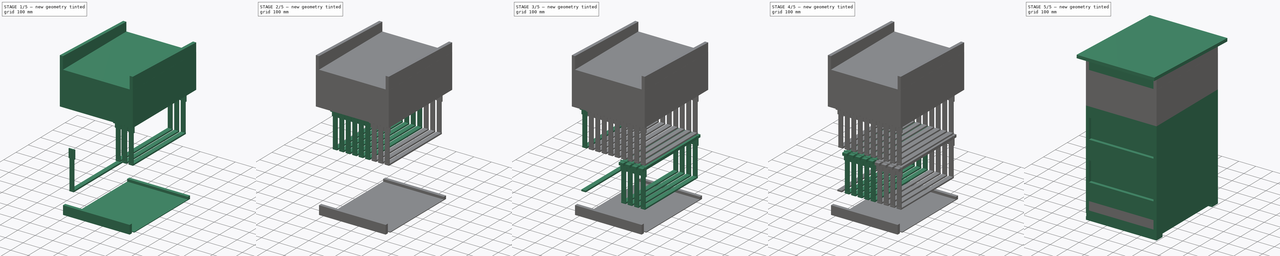
[diagram: build sequence overview — one tinted view per stage of 5, left to right]
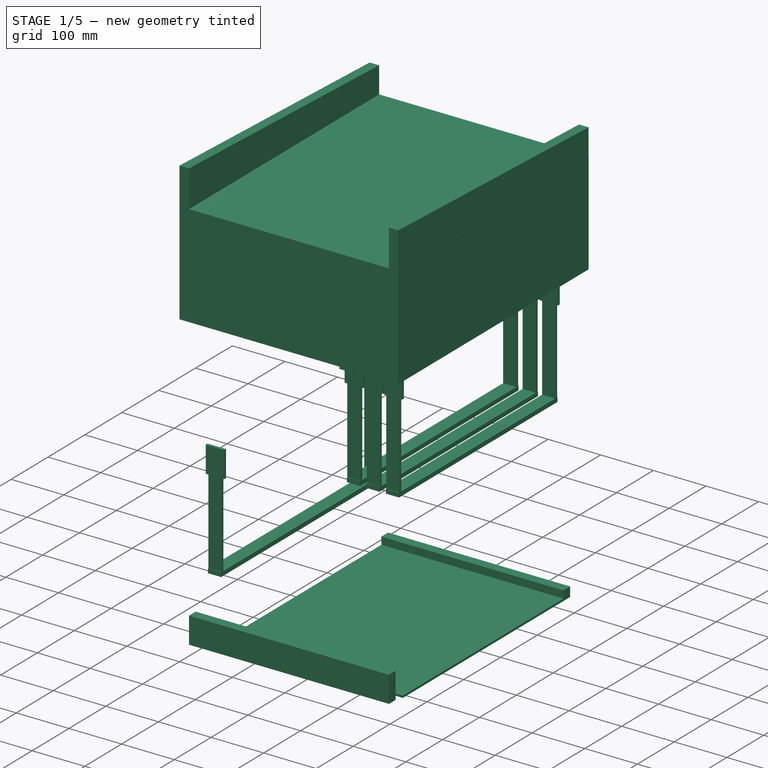
[diagram: stage 1 of 5 — iso view after this stage's code; geometry added in this stage tinted green]
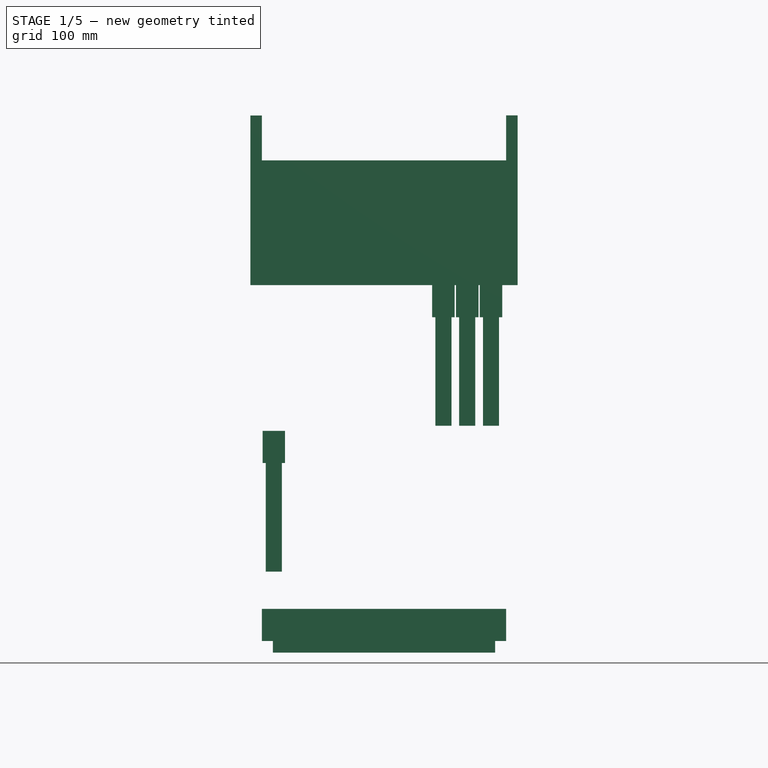
[diagram: stage 1 of 5 — front view after this stage's code; geometry added in this stage tinted green]
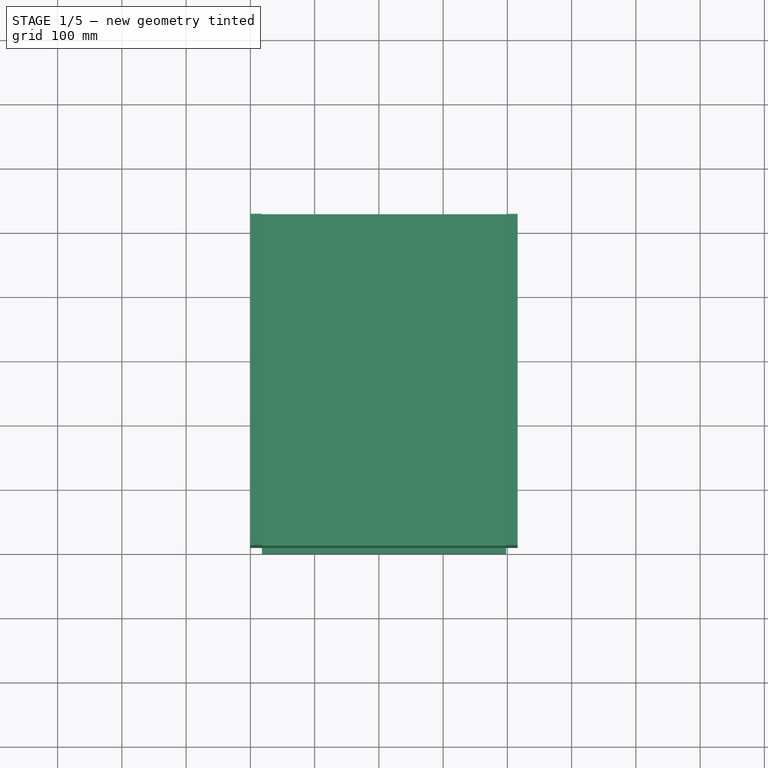
[diagram: stage 1 of 5 — top view after this stage's code; geometry added in this stage tinted green]
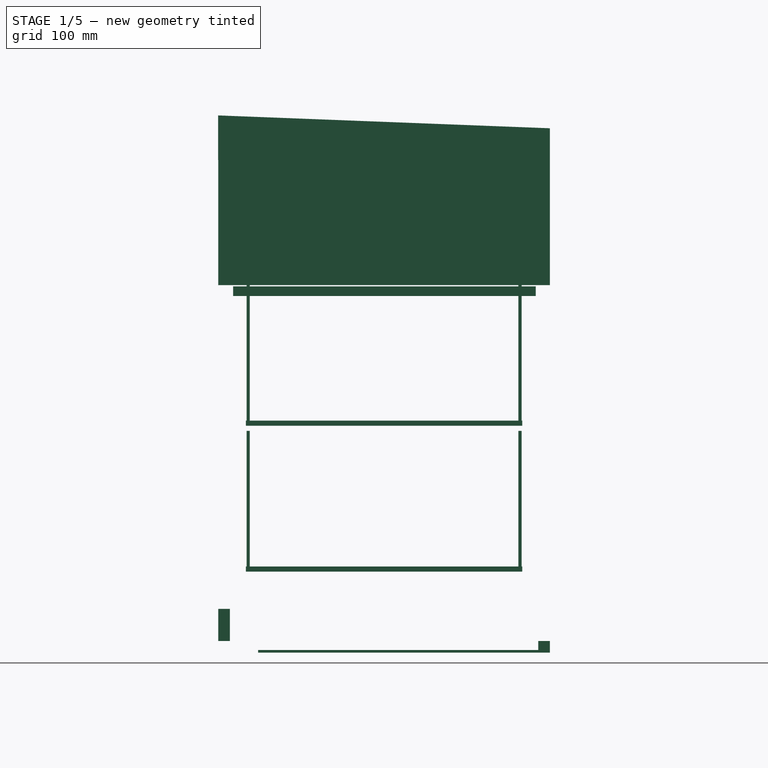
[diagram: stage 1 of 5 — right view after this stage's code; geometry added in this stage tinted green]
FCSTD DOCUMENT  (FreeCAD 0.16R)
Label: Hohenheimer Einfachbeute Bauhaus
License: All rights reserved
LicenseURL: http://en.wikipedia.org/wiki/All_rights_reserved
objects: Part::Box×167, Part::MultiFuse×61, App::DocumentObjectGroup×7, Sketcher::SketchObject×2, PartDesign::Pad×2, Part::Cut×1, Part::Fuse×1
note: 236 computed .brp shape members not serialized (recipe doc carries the construction recipe); baked Part::Feature solids carry a one-line shape summary decoded from their .brp

FEATURE [Part::Box] Box022  label="Boden Varroalade Verschluss (2.2)"
  Height = 14
  Length = 346
  Placement = pos=(35,498,40) rot=(0,0,1;0rad)
  Width = 18
FEATURE [Part::Box] Box149  label="Magazin Seitenwand (1)072"
  Height = 50
  Length = 35
  Placement = pos=(19,467,331) rot=(0,0,1;0rad)
  Width = 5
FEATURE [Part::Box] Box150  label="Magazin Seitenwand (1)073"
  Height = 219
  Length = 25
  Placement = pos=(24,467,162) rot=(0,0,1;0rad)
  Width = 5
FEATURE [Part::MultiFuse] Fusion052  label="Seitenbrett034"
  Shapes = -> [Box149,Box150]
FEATURE [Part::Box] Box151  label="Magazin Seitenwand (1)074"
  Height = 50
  Length = 35
  Placement = pos=(19,467,331) rot=(0,0,1;0rad)
  Width = 5
FEATURE [Part::Box] Box152  label="Magazin Seitenwand (1)075"
  Height = 219
  Length = 25
  Placement = pos=(24,467,162) rot=(0,0,1;0rad)
  Width = 5
FEATURE [Part::MultiFuse] Fusion053  label="Seitenbrett035"
  Placement = pos=(0,-423,0) rot=(0,0,1;0rad)
  Shapes = -> [Box151,Box152]
FEATURE [Part::Box] Box153  label="Rähmchen untere Leiste017"
  Height = 8
  Length = 25
  Placement = pos=(24,43,162) rot=(0,0,1;0rad)
  Width = 430
FEATURE [Part::Box] Box154  label="Rähmchen obere Leiste018"
  Height = 15
  Length = 25
  Placement = pos=(24,23,364) rot=(0,0,1;0rad)
  Width = 471
FEATURE [Part::Box] Box155  label="Magazin Seitenwand (1)076"
  Height = 50
  Length = 35
  Placement = pos=(19,467,331) rot=(0,0,1;0rad)
  Width = 5
FEATURE [Part::Box] Box156  label="Magazin Seitenwand (1)077"
  Height = 219
  Length = 25
  Placement = pos=(24,467,162) rot=(0,0,1;0rad)
  Width = 5
FEATURE [Part::MultiFuse] Fusion055  label="Seitenbrett036"
  Shapes = -> [Box155,Box156]
FEATURE [Part::Box] Box157  label="Magazin Seitenwand (1)078"
  Height = 50
  Length = 35
  Placement = pos=(19,467,331) rot=(0,0,1;0rad)
  Width = 5
FEATURE [Part::Box] Box158  label="Magazin Seitenwand (1)079"
  Height = 219
  Length = 25
  Placement = pos=(24,467,162) rot=(0,0,1;0rad)
  Width = 5
FEATURE [Part::MultiFuse] Fusion056  label="Seitenbrett037"
  Placement = pos=(0,-423,0) rot=(0,0,1;0rad)
  Shapes = -> [Box157,Box158]
FEATURE [Part::Box] Box159  label="Rähmchen untere Leiste018"
  Height = 8
  Length = 25
  Placement = pos=(24,43,162) rot=(0,0,1;0rad)
  Width = 430
FEATURE [Part::MultiFuse] Fusion057  label="Rähmchen020"
  Placement = pos=(264,0,227) rot=(0,0,1;0rad)
  Shapes = -> [Box154,Fusion055,Fusion056,Box159]
FEATURE [Part::Box] Box160  label="Rähmchen obere Leiste019"
  Height = 15
  Length = 25
  Placement = pos=(24,23,364) rot=(0,0,1;0rad)
  Width = 471
FEATURE [Part::Box] Box161  label="Magazin Seitenwand (1)080"
  Height = 50
  Length = 35
  Placement = pos=(19,467,331) rot=(0,0,1;0rad)
  Width = 5
FEATURE [Part::Box] Box162  label="Magazin Seitenwand (1)081"
  Height = 219
  Length = 25
  Placement = pos=(24,467,162) rot=(0,0,1;0rad)
  Width = 5
FEATURE [Part::MultiFuse] Fusion058  label="Seitenbrett038"
  Shapes = -> [Box161,Box162]
FEATURE [Part::Box] Box163  label="Magazin Seitenwand (1)082"
  Height = 50
  Length = 35
  Placement = pos=(19,467,331) rot=(0,0,1;0rad)
  Width = 5
FEATURE [Part::Box] Box164  label="Magazin Seitenwand (1)083"
  Height = 219
  Length = 25
  Placement = pos=(24,467,162) rot=(0,0,1;0rad)
  Width = 5
FEATURE [Part::MultiFuse] Fusion059  label="Seitenbrett039"
  Placement = pos=(0,-423,0) rot=(0,0,1;0rad)
  Shapes = -> [Box163,Box164]
FEATURE [Part::Box] Box165  label="Rähmchen untere Leiste019"
  Height = 8
  Length = 25
  Placement = pos=(24,43,162) rot=(0,0,1;0rad)
  Width = 430
FEATURE [Part::MultiFuse] Fusion060  label="Rähmchen021"
  Placement = pos=(301,0,227) rot=(0,0,1;0rad)
  Shapes = -> [Box160,Fusion058,Fusion059,Box165]
FEATURE [Part::Box] Box166  label="Rähmchen obere Leiste020"
  Height = 15
  Length = 25
  Placement = pos=(24,23,364) rot=(0,0,1;0rad)
  Width = 471
FEATURE [Part::Box] Box167  label="Magazin Seitenwand (1)084"
  Height = 50
  Length = 35
  Placement = pos=(19,467,331) rot=(0,0,1;0rad)
  Width = 5
FEATURE [Part::Box] Box168  label="Magazin Seitenwand (1)085"
  Height = 219
  Length = 25
  Placement = pos=(24,467,162) rot=(0,0,1;0rad)
  Width = 5
FEATURE [Part::MultiFuse] Fusion061  label="Seitenbrett040"
  Shapes = -> [Box167,Box168]
FEATURE [Part::Box] Box169  label="Magazin Seitenwand (1)086"
  Height = 50
  Length = 35
  Placement = pos=(19,467,331) rot=(0,0,1;0rad)
  Width = 5
FEATURE [Part::Box] Box170  label="Magazin Seitenwand (1)087"
  Height = 219
  Length = 25
  Placement = pos=(24,467,162) rot=(0,0,1;0rad)
  Width = 5
FEATURE [Part::MultiFuse] Fusion062  label="Seitenbrett041"
  Placement = pos=(0,-423,0) rot=(0,0,1;0rad)
  Shapes = -> [Box169,Box170]
FEATURE [Part::Box] Box171  label="Rähmchen untere Leiste020"
  Height = 8
  Length = 25
  Placement = pos=(24,43,162) rot=(0,0,1;0rad)
  Width = 430
FEATURE [Part::MultiFuse] Fusion063  label="Rähmchen022"
  Placement = pos=(338,0,227) rot=(0,0,1;0rad)
  Shapes = -> [Box166,Fusion061,Fusion062,Box171]
FEATURE [App::DocumentObjectGroup] Gruppe005  label="Rähmchen012"
  Group = -> [Fusion036,Fusion039,Fusion042,Fusion045,Fusion048,Fusion051,Fusion054,Fusion057,Fusion060,Fusion063]
FEATURE [App::DocumentObjectGroup] Gruppe002  label="Zarge002"
  Group = -> [Box033,Box034,Box038,Box035,Box036,Box037,Box039,Box040,Gruppe005]
FEATURE [Part::Box] Box044  label="Deckel Stirnseite (2.1)001"
  Height = 18
  Length = 416
  Placement = pos=(0,0,784) rot=(0,0,1;0rad)
  Width = 516
FEATURE [Part::Box] Box172  label="Boden Varroalade Schaufläche"
  Height = 4
  Length = 346
  Placement = pos=(35,62,36) rot=(0,0,1;0rad)
  Width = 454
FEATURE [Part::Fuse] Fusion064  label="Varroaschublade"
  Base = -> Box172
  Tool = -> Box022
FEATURE [Sketcher::SketchObject] Sketch002
  Placement = pos=(0,0,176) rot=(0.57735,0.57735,0.57735;2.0944rad)
  sketch-geometry (4):
    g0: LineSegment StartX=4.28085e-05 StartY=625.984 StartZ=0 EndX=4.28085e-05 EndY=695.984 EndZ=0
    g1: LineSegment StartX=4.28085e-05 StartY=695.984 StartZ=0 EndX=516 EndY=675.984 EndZ=0
    g2: LineSegment StartX=516 StartY=675.984 StartZ=0 EndX=516 EndY=625.984 EndZ=0
    g3: LineSegment StartX=516 StartY=625.984 StartZ=0 EndX=4.28085e-05 EndY=625.984 EndZ=0
  constraints (10):
    c: Coincident(g0,g1)
    c: Coincident(g1,g2)
    c: Coincident(g2,g3)
    c: Coincident(g3,g0)
    c: Parallel(g2,g0)
    c: Parallel(g0,g-2)
    c: Perpendicular(g2,g3)
    c: Distance(g3) = 516
    c: Distance(g0) = 70
    c: Distance(g2) = 50
FEATURE [PartDesign::Pad] Pad001  label="Deckel Seitenwand 1"
  Length = 18
  Length2 = 100
  Placement = pos=(0,0,176) rot=(0.57735,0.57735,0.57735;2.0944rad)
  Sketch = -> Sketch002
  Type = 0
FEATURE [Sketcher::SketchObject] Sketch001
  Placement = pos=(398,0,176) rot=(0.57735,0.57735,0.57735;2.0944rad)
  sketch-geometry (4):
    g0: LineSegment StartX=-0.22515 StartY=626.051 StartZ=0 EndX=-0.22515 EndY=696.051 EndZ=0
    g1: LineSegment StartX=-0.22515 StartY=696.051 StartZ=0 EndX=515.775 EndY=676.051 EndZ=0
    g2: LineSegment StartX=515.775 StartY=676.051 StartZ=0 EndX=515.775 EndY=626.051 EndZ=0
    g3: LineSegment StartX=515.775 StartY=626.051 StartZ=0 EndX=-0.22515 EndY=626.051 EndZ=0
  constraints (10):
    c: Coincident(g0,g1)
    c: Coincident(g1,g2)
    c: Coincident(g2,g3)
    c: Coincident(g3,g0)
    c: Perpendicular(g3,g2)
    c: Perpendicular(g3,g0)
    c: Distance(g3) = 516
    c: Distance(g2) = 50
    c: Horizontal(g3)
    c: Distance(g0) = 70
FEATURE [PartDesign::Pad] Pad  label="Deckel Seitenwand 2"
  Length = 18
  Length2 = 100
  Placement = pos=(398,0,176) rot=(0.57735,0.57735,0.57735;2.0944rad)
  Sketch = -> Sketch001
  Type = 0
FEATURE [App::DocumentObjectGroup] Gruppe003  label="Deckel"
  Group = -> [Box041,Box042,Box043,Box044,Pad001,Pad]
FEATURE [Part::Box] Box173  label="Boden - Fluglochverschluss"
  Height = 50
  Length = 380
  Placement = pos=(18,0,54) rot=(0,0,1;0rad)
  Width = 18
FEATURE [App::DocumentObjectGroup] Gruppe  label="Boden"
  Group = -> [Box,Box002,Box003,Box004,Box005,Box007,Box008,Box009,Box014,Box015,Box016,Box017,Box018,Box019,Cut,Fusion,Fusion064,Box173]
FEATURE [Part::Box] Box174  label="Magazin Griff oben (3.1)002"
  Height = 172
  Length = 380
  Placement = pos=(18,0,612) rot=(0,0,1;0rad)
  Width = 18
FEATURE [Part::Box] Box175  label="Magazin Griff oben (3)002"
  Height = 172
  Length = 380
  Placement = pos=(18,498,612) rot=(0,0,1;0rad)
  Width = 18
FEATURE [Part::Box] Box176  label="Magazin Seitenwand (1)088"
  Height = 172
  Length = 18
  Placement = pos=(398,0,612) rot=(0,0,1;0rad)
  Width = 516
FEATURE [Part::Box] Box177  label="Magazin Seitenwand (1.1)002"
  Height = 172
  Length = 18
  Placement = pos=(0,0,612) rot=(0,0,1;0rad)
  Width = 516
FEATURE [Part::Box] Box178  label="Futterzargenboden - Passendes Loch hineinsägen!"
  Height = 4
  Length = 416
  Placement = pos=(0,0,608) rot=(0,0,1;0rad)
  Width = 516
FEATURE [App::DocumentObjectGroup] Gruppe027  label="Futterzarge001"
  Group = -> [Box174,Box175,Box176,Box177,Box178]
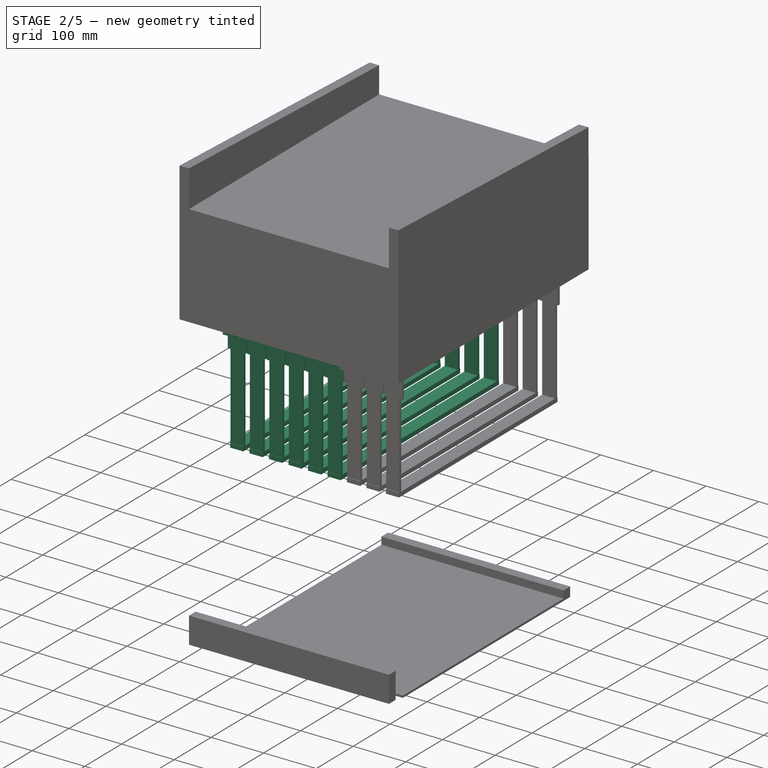
[diagram: stage 2 of 5 — iso view after this stage's code; geometry added in this stage tinted green]
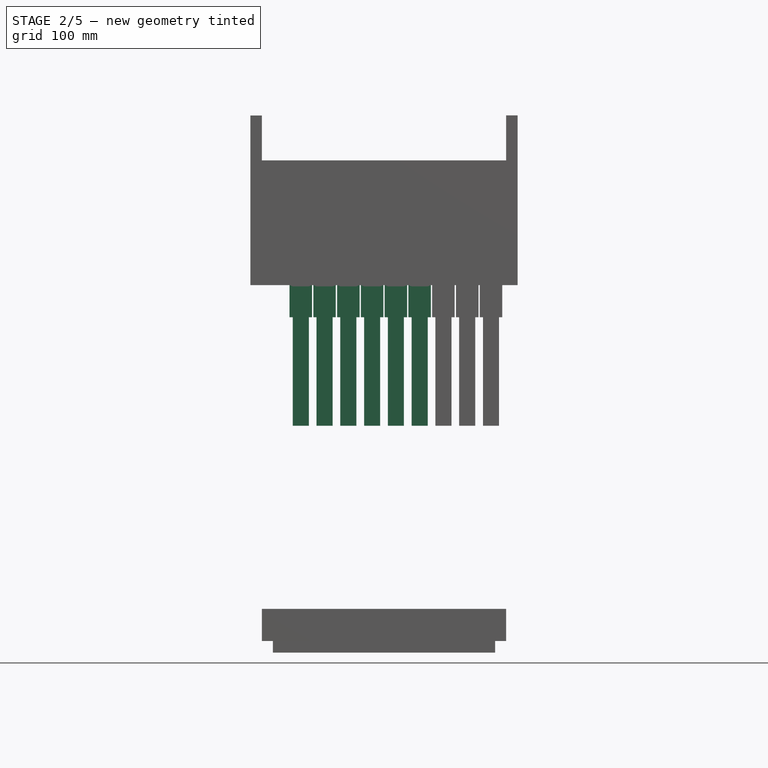
[diagram: stage 2 of 5 — front view after this stage's code; geometry added in this stage tinted green]
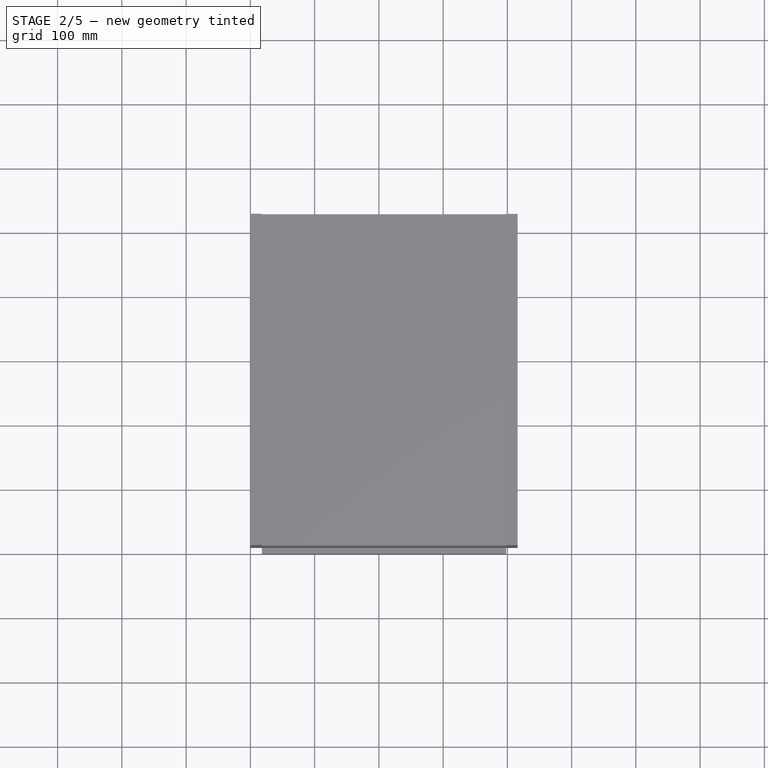
[diagram: stage 2 of 5 — top view after this stage's code; geometry added in this stage tinted green]
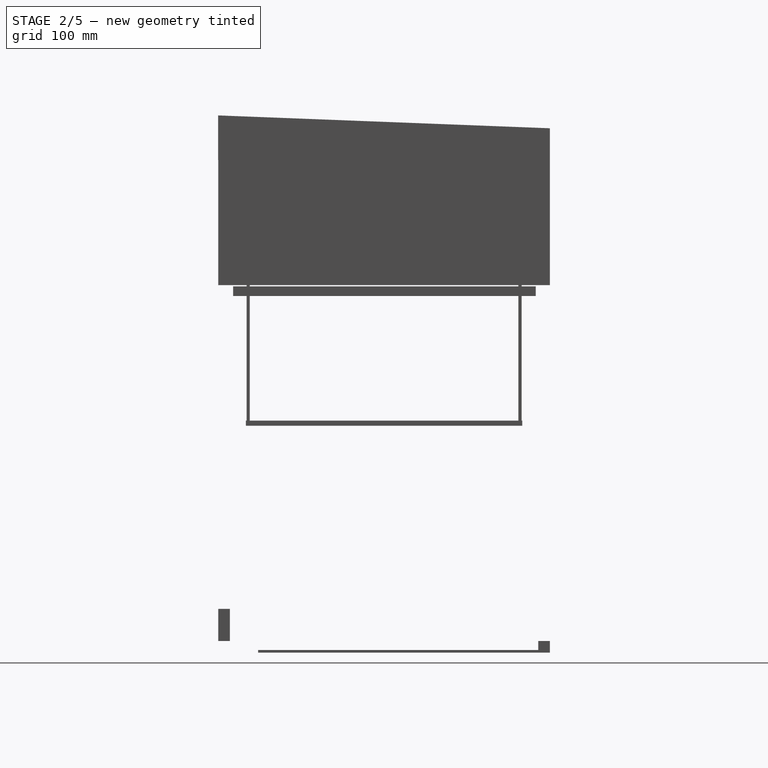
[diagram: stage 2 of 5 — right view after this stage's code; geometry added in this stage tinted green]
FEATURE [Part::Box] Box118  label="Rähmchen obere Leiste012"
  Height = 15
  Length = 25
  Placement = pos=(24,23,364) rot=(0,0,1;0rad)
  Width = 471
FEATURE [Part::Box] Box119  label="Magazin Seitenwand (1)052"
  Height = 50
  Length = 35
  Placement = pos=(19,467,331) rot=(0,0,1;0rad)
  Width = 5
FEATURE [Part::Box] Box120  label="Magazin Seitenwand (1)053"
  Height = 219
  Length = 25
  Placement = pos=(24,467,162) rot=(0,0,1;0rad)
  Width = 5
FEATURE [Part::MultiFuse] Fusion037  label="Seitenbrett024"
  Shapes = -> [Box119,Box120]
FEATURE [Part::Box] Box121  label="Magazin Seitenwand (1)054"
  Height = 50
  Length = 35
  Placement = pos=(19,467,331) rot=(0,0,1;0rad)
  Width = 5
FEATURE [Part::Box] Box122  label="Magazin Seitenwand (1)055"
  Height = 219
  Length = 25
  Placement = pos=(24,467,162) rot=(0,0,1;0rad)
  Width = 5
FEATURE [Part::MultiFuse] Fusion038  label="Seitenbrett025"
  Placement = pos=(0,-423,0) rot=(0,0,1;0rad)
  Shapes = -> [Box121,Box122]
FEATURE [Part::Box] Box123  label="Rähmchen untere Leiste012"
  Height = 8
  Length = 25
  Placement = pos=(24,43,162) rot=(0,0,1;0rad)
  Width = 430
FEATURE [Part::MultiFuse] Fusion039  label="Rähmchen014"
  Placement = pos=(42,0,227) rot=(0,0,1;0rad)
  Shapes = -> [Box118,Fusion037,Fusion038,Box123]
FEATURE [Part::Box] Box124  label="Rähmchen obere Leiste013"
  Height = 15
  Length = 25
  Placement = pos=(24,23,364) rot=(0,0,1;0rad)
  Width = 471
FEATURE [Part::Box] Box125  label="Magazin Seitenwand (1)056"
  Height = 50
  Length = 35
  Placement = pos=(19,467,331) rot=(0,0,1;0rad)
  Width = 5
FEATURE [Part::Box] Box126  label="Magazin Seitenwand (1)057"
  Height = 219
  Length = 25
  Placement = pos=(24,467,162) rot=(0,0,1;0rad)
  Width = 5
FEATURE [Part::MultiFuse] Fusion040  label="Seitenbrett026"
  Shapes = -> [Box125,Box126]
FEATURE [Part::Box] Box127  label="Magazin Seitenwand (1)058"
  Height = 50
  Length = 35
  Placement = pos=(19,467,331) rot=(0,0,1;0rad)
  Width = 5
FEATURE [Part::Box] Box128  label="Magazin Seitenwand (1)059"
  Height = 219
  Length = 25
  Placement = pos=(24,467,162) rot=(0,0,1;0rad)
  Width = 5
FEATURE [Part::MultiFuse] Fusion041  label="Seitenbrett027"
  Placement = pos=(0,-423,0) rot=(0,0,1;0rad)
  Shapes = -> [Box127,Box128]
FEATURE [Part::Box] Box129  label="Rähmchen untere Leiste013"
  Height = 8
  Length = 25
  Placement = pos=(24,43,162) rot=(0,0,1;0rad)
  Width = 430
FEATURE [Part::MultiFuse] Fusion042  label="Rähmchen015"
  Placement = pos=(79,0,227) rot=(0,0,1;0rad)
  Shapes = -> [Box124,Fusion040,Fusion041,Box129]
FEATURE [Part::Box] Box130  label="Rähmchen obere Leiste014"
  Height = 15
  Length = 25
  Placement = pos=(24,23,364) rot=(0,0,1;0rad)
  Width = 471
FEATURE [Part::Box] Box131  label="Magazin Seitenwand (1)060"
  Height = 50
  Length = 35
  Placement = pos=(19,467,331) rot=(0,0,1;0rad)
  Width = 5
FEATURE [Part::Box] Box132  label="Magazin Seitenwand (1)061"
  Height = 219
  Length = 25
  Placement = pos=(24,467,162) rot=(0,0,1;0rad)
  Width = 5
FEATURE [Part::MultiFuse] Fusion043  label="Seitenbrett028"
  Shapes = -> [Box131,Box132]
FEATURE [Part::Box] Box133  label="Magazin Seitenwand (1)062"
  Height = 50
  Length = 35
  Placement = pos=(19,467,331) rot=(0,0,1;0rad)
  Width = 5
FEATURE [Part::Box] Box134  label="Magazin Seitenwand (1)063"
  Height = 219
  Length = 25
  Placement = pos=(24,467,162) rot=(0,0,1;0rad)
  Width = 5
FEATURE [Part::MultiFuse] Fusion044  label="Seitenbrett029"
  Placement = pos=(0,-423,0) rot=(0,0,1;0rad)
  Shapes = -> [Box133,Box134]
FEATURE [Part::Box] Box135  label="Rähmchen untere Leiste014"
  Height = 8
  Length = 25
  Placement = pos=(24,43,162) rot=(0,0,1;0rad)
  Width = 430
FEATURE [Part::MultiFuse] Fusion045  label="Rähmchen016"
  Placement = pos=(116,0,227) rot=(0,0,1;0rad)
  Shapes = -> [Box130,Fusion043,Fusion044,Box135]
FEATURE [Part::Box] Box136  label="Rähmchen obere Leiste015"
  Height = 15
  Length = 25
  Placement = pos=(24,23,364) rot=(0,0,1;0rad)
  Width = 471
FEATURE [Part::Box] Box137  label="Magazin Seitenwand (1)064"
  Height = 50
  Length = 35
  Placement = pos=(19,467,331) rot=(0,0,1;0rad)
  Width = 5
FEATURE [Part::Box] Box138  label="Magazin Seitenwand (1)065"
  Height = 219
  Length = 25
  Placement = pos=(24,467,162) rot=(0,0,1;0rad)
  Width = 5
FEATURE [Part::MultiFuse] Fusion046  label="Seitenbrett030"
  Shapes = -> [Box137,Box138]
FEATURE [Part::Box] Box139  label="Magazin Seitenwand (1)066"
  Height = 50
  Length = 35
  Placement = pos=(19,467,331) rot=(0,0,1;0rad)
  Width = 5
FEATURE [Part::Box] Box140  label="Magazin Seitenwand (1)067"
  Height = 219
  Length = 25
  Placement = pos=(24,467,162) rot=(0,0,1;0rad)
  Width = 5
FEATURE [Part::MultiFuse] Fusion047  label="Seitenbrett031"
  Placement = pos=(0,-423,0) rot=(0,0,1;0rad)
  Shapes = -> [Box139,Box140]
FEATURE [Part::Box] Box141  label="Rähmchen untere Leiste015"
  Height = 8
  Length = 25
  Placement = pos=(24,43,162) rot=(0,0,1;0rad)
  Width = 430
FEATURE [Part::MultiFuse] Fusion048  label="Rähmchen017"
  Placement = pos=(153,0,227) rot=(0,0,1;0rad)
  Shapes = -> [Box136,Fusion046,Fusion047,Box141]
FEATURE [Part::Box] Box142  label="Rähmchen obere Leiste016"
  Height = 15
  Length = 25
  Placement = pos=(24,23,364) rot=(0,0,1;0rad)
  Width = 471
FEATURE [Part::Box] Box143  label="Magazin Seitenwand (1)068"
  Height = 50
  Length = 35
  Placement = pos=(19,467,331) rot=(0,0,1;0rad)
  Width = 5
FEATURE [Part::Box] Box144  label="Magazin Seitenwand (1)069"
  Height = 219
  Length = 25
  Placement = pos=(24,467,162) rot=(0,0,1;0rad)
  Width = 5
FEATURE [Part::MultiFuse] Fusion049  label="Seitenbrett032"
  Shapes = -> [Box143,Box144]
FEATURE [Part::Box] Box145  label="Magazin Seitenwand (1)070"
  Height = 50
  Length = 35
  Placement = pos=(19,467,331) rot=(0,0,1;0rad)
  Width = 5
FEATURE [Part::Box] Box146  label="Magazin Seitenwand (1)071"
  Height = 219
  Length = 25
  Placement = pos=(24,467,162) rot=(0,0,1;0rad)
  Width = 5
FEATURE [Part::MultiFuse] Fusion050  label="Seitenbrett033"
  Placement = pos=(0,-423,0) rot=(0,0,1;0rad)
  Shapes = -> [Box145,Box146]
FEATURE [Part::Box] Box147  label="Rähmchen untere Leiste016"
  Height = 8
  Length = 25
  Placement = pos=(24,43,162) rot=(0,0,1;0rad)
  Width = 430
FEATURE [Part::MultiFuse] Fusion051  label="Rähmchen018"
  Placement = pos=(190,0,227) rot=(0,0,1;0rad)
  Shapes = -> [Box142,Fusion049,Fusion050,Box147]
FEATURE [Part::Box] Box148  label="Rähmchen obere Leiste017"
  Height = 15
  Length = 25
  Placement = pos=(24,23,364) rot=(0,0,1;0rad)
  Width = 471
FEATURE [Part::MultiFuse] Fusion054  label="Rähmchen019"
  Placement = pos=(227,0,227) rot=(0,0,1;0rad)
  Shapes = -> [Box148,Fusion052,Fusion053,Box153]
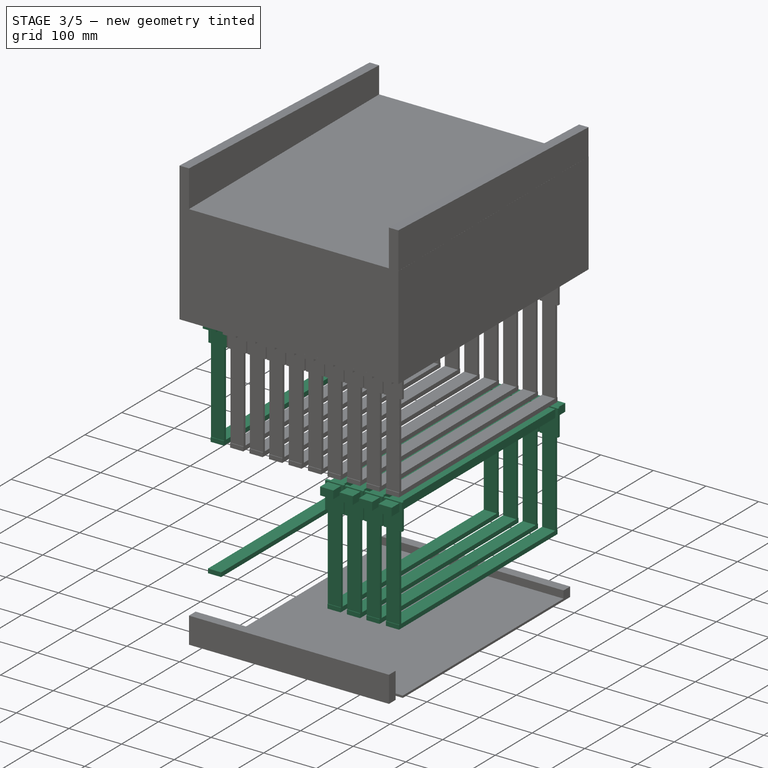
[diagram: stage 3 of 5 — iso view after this stage's code; geometry added in this stage tinted green]
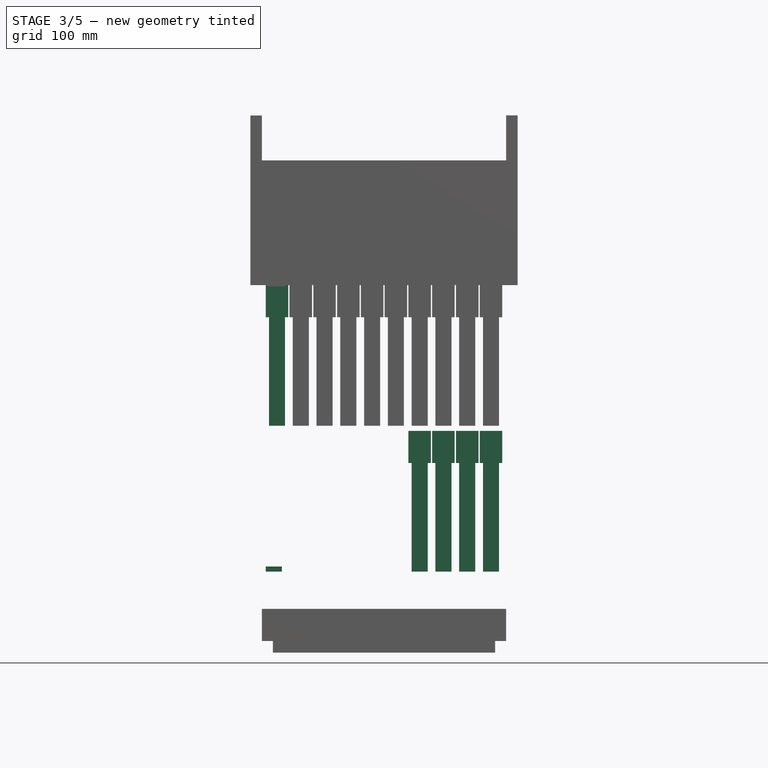
[diagram: stage 3 of 5 — front view after this stage's code; geometry added in this stage tinted green]
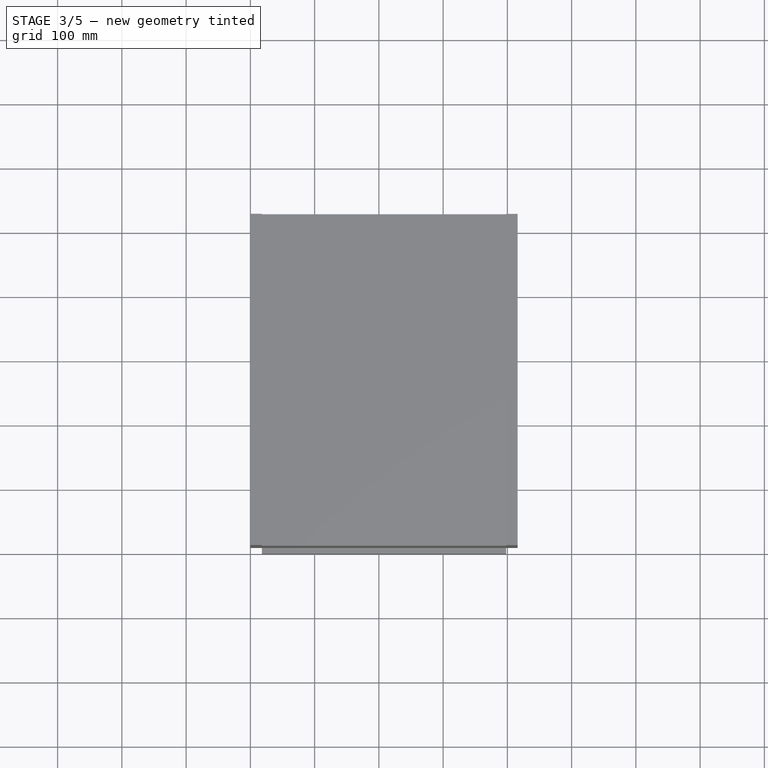
[diagram: stage 3 of 5 — top view after this stage's code; geometry added in this stage tinted green]
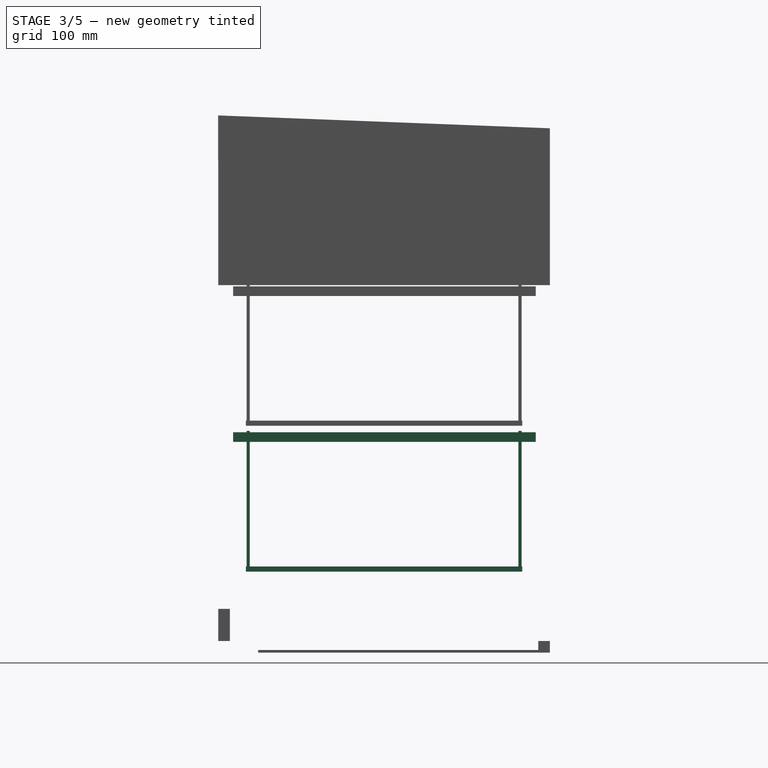
[diagram: stage 3 of 5 — right view after this stage's code; geometry added in this stage tinted green]
FEATURE [Part::Box] Box081  label="Rähmchen untere Leiste005"
  Height = 8
  Length = 25
  Placement = pos=(24,43,162) rot=(0,0,1;0rad)
  Width = 430
FEATURE [Part::Box] Box082  label="Rähmchen obere Leiste006"
  Height = 15
  Length = 25
  Placement = pos=(24,23,364) rot=(0,0,1;0rad)
  Width = 471
FEATURE [Part::Box] Box083  label="Magazin Seitenwand (1)028"
  Height = 50
  Length = 35
  Placement = pos=(19,467,331) rot=(0,0,1;0rad)
  Width = 5
FEATURE [Part::Box] Box084  label="Magazin Seitenwand (1)029"
  Height = 219
  Length = 25
  Placement = pos=(24,467,162) rot=(0,0,1;0rad)
  Width = 5
FEATURE [Part::MultiFuse] Fusion019  label="Seitenbrett012"
  Shapes = -> [Box083,Box084]
FEATURE [Part::Box] Box085  label="Magazin Seitenwand (1)030"
  Height = 50
  Length = 35
  Placement = pos=(19,467,331) rot=(0,0,1;0rad)
  Width = 5
FEATURE [Part::Box] Box086  label="Magazin Seitenwand (1)031"
  Height = 219
  Length = 25
  Placement = pos=(24,467,162) rot=(0,0,1;0rad)
  Width = 5
FEATURE [Part::MultiFuse] Fusion020  label="Seitenbrett013"
  Placement = pos=(0,-423,0) rot=(0,0,1;0rad)
  Shapes = -> [Box085,Box086]
FEATURE [Part::Box] Box087  label="Rähmchen untere Leiste006"
  Height = 8
  Length = 25
  Placement = pos=(24,43,162) rot=(0,0,1;0rad)
  Width = 430
FEATURE [Part::MultiFuse] Fusion021  label="Rähmchen007"
  Placement = pos=(227,0,0) rot=(0,0,1;0rad)
  Shapes = -> [Box082,Fusion019,Fusion020,Box087]
FEATURE [Part::Box] Box088  label="Rähmchen obere Leiste007"
  Height = 15
  Length = 25
  Placement = pos=(24,23,364) rot=(0,0,1;0rad)
  Width = 471
FEATURE [Part::Box] Box089  label="Magazin Seitenwand (1)032"
  Height = 50
  Length = 35
  Placement = pos=(19,467,331) rot=(0,0,1;0rad)
  Width = 5
FEATURE [Part::Box] Box090  label="Magazin Seitenwand (1)033"
  Height = 219
  Length = 25
  Placement = pos=(24,467,162) rot=(0,0,1;0rad)
  Width = 5
FEATURE [Part::MultiFuse] Fusion022  label="Seitenbrett014"
  Shapes = -> [Box089,Box090]
FEATURE [Part::Box] Box091  label="Magazin Seitenwand (1)034"
  Height = 50
  Length = 35
  Placement = pos=(19,467,331) rot=(0,0,1;0rad)
  Width = 5
FEATURE [Part::Box] Box092  label="Magazin Seitenwand (1)035"
  Height = 219
  Length = 25
  Placement = pos=(24,467,162) rot=(0,0,1;0rad)
  Width = 5
FEATURE [Part::MultiFuse] Fusion023  label="Seitenbrett015"
  Placement = pos=(0,-423,0) rot=(0,0,1;0rad)
  Shapes = -> [Box091,Box092]
FEATURE [Part::Box] Box093  label="Rähmchen untere Leiste007"
  Height = 8
  Length = 25
  Placement = pos=(24,43,162) rot=(0,0,1;0rad)
  Width = 430
FEATURE [Part::MultiFuse] Fusion024  label="Rähmchen008"
  Placement = pos=(264,0,0) rot=(0,0,1;0rad)
  Shapes = -> [Box088,Fusion022,Fusion023,Box093]
FEATURE [Part::Box] Box094  label="Rähmchen obere Leiste008"
  Height = 15
  Length = 25
  Placement = pos=(24,23,364) rot=(0,0,1;0rad)
  Width = 471
FEATURE [Part::Box] Box095  label="Magazin Seitenwand (1)036"
  Height = 50
  Length = 35
  Placement = pos=(19,467,331) rot=(0,0,1;0rad)
  Width = 5
FEATURE [Part::Box] Box096  label="Magazin Seitenwand (1)037"
  Height = 219
  Length = 25
  Placement = pos=(24,467,162) rot=(0,0,1;0rad)
  Width = 5
FEATURE [Part::MultiFuse] Fusion025  label="Seitenbrett016"
  Shapes = -> [Box095,Box096]
FEATURE [Part::Box] Box097  label="Magazin Seitenwand (1)038"
  Height = 50
  Length = 35
  Placement = pos=(19,467,331) rot=(0,0,1;0rad)
  Width = 5
FEATURE [Part::Box] Box098  label="Magazin Seitenwand (1)039"
  Height = 219
  Length = 25
  Placement = pos=(24,467,162) rot=(0,0,1;0rad)
  Width = 5
FEATURE [Part::MultiFuse] Fusion026  label="Seitenbrett017"
  Placement = pos=(0,-423,0) rot=(0,0,1;0rad)
  Shapes = -> [Box097,Box098]
FEATURE [Part::Box] Box099  label="Rähmchen untere Leiste008"
  Height = 8
  Length = 25
  Placement = pos=(24,43,162) rot=(0,0,1;0rad)
  Width = 430
FEATURE [Part::MultiFuse] Fusion027  label="Rähmchen009"
  Placement = pos=(301,0,0) rot=(0,0,1;0rad)
  Shapes = -> [Box094,Fusion025,Fusion026,Box099]
FEATURE [Part::Box] Box100  label="Rähmchen obere Leiste009"
  Height = 15
  Length = 25
  Placement = pos=(24,23,364) rot=(0,0,1;0rad)
  Width = 471
FEATURE [Part::Box] Box101  label="Magazin Seitenwand (1)040"
  Height = 50
  Length = 35
  Placement = pos=(19,467,331) rot=(0,0,1;0rad)
  Width = 5
FEATURE [Part::Box] Box102  label="Magazin Seitenwand (1)041"
  Height = 219
  Length = 25
  Placement = pos=(24,467,162) rot=(0,0,1;0rad)
  Width = 5
FEATURE [Part::MultiFuse] Fusion028  label="Seitenbrett018"
  Shapes = -> [Box101,Box102]
FEATURE [Part::Box] Box103  label="Magazin Seitenwand (1)042"
  Height = 50
  Length = 35
  Placement = pos=(19,467,331) rot=(0,0,1;0rad)
  Width = 5
FEATURE [Part::Box] Box104  label="Magazin Seitenwand (1)043"
  Height = 219
  Length = 25
  Placement = pos=(24,467,162) rot=(0,0,1;0rad)
  Width = 5
FEATURE [Part::MultiFuse] Fusion029  label="Seitenbrett019"
  Placement = pos=(0,-423,0) rot=(0,0,1;0rad)
  Shapes = -> [Box103,Box104]
FEATURE [Part::Box] Box105  label="Rähmchen untere Leiste009"
  Height = 8
  Length = 25
  Placement = pos=(24,43,162) rot=(0,0,1;0rad)
  Width = 430
FEATURE [Part::MultiFuse] Fusion030  label="Rähmchen010"
  Placement = pos=(338,0,0) rot=(0,0,1;0rad)
  Shapes = -> [Box100,Fusion028,Fusion029,Box105]
FEATURE [App::DocumentObjectGroup] Gruppe004  label="Rähmchen"
  Group = -> [Fusion003,Fusion006,Fusion009,Fusion012,Fusion015,Fusion018,Fusion021,Fusion024,Fusion027,Fusion030]
FEATURE [App::DocumentObjectGroup] Gruppe001  label="Zarge1"
  Group = -> [Box025,Box026,Box027,Box028,Box029,Box030,Box031,Box032,Gruppe004]
FEATURE [Part::Box] Box112  label="Rähmchen obere Leiste011"
  Height = 15
  Length = 25
  Placement = pos=(23,23,364) rot=(0,0,1;0rad)
  Width = 471
FEATURE [Part::Box] Box113  label="Magazin Seitenwand (1)048"
  Height = 50
  Length = 35
  Placement = pos=(19,467,331) rot=(0,0,1;0rad)
  Width = 5
FEATURE [Part::Box] Box114  label="Magazin Seitenwand (1)049"
  Height = 219
  Length = 25
  Placement = pos=(24,467,162) rot=(0,0,1;0rad)
  Width = 5
FEATURE [Part::MultiFuse] Fusion034  label="Seitenbrett022"
  Shapes = -> [Box113,Box114]
FEATURE [Part::Box] Box115  label="Magazin Seitenwand (1)050"
  Height = 50
  Length = 35
  Placement = pos=(19,467,331) rot=(0,0,1;0rad)
  Width = 5
FEATURE [Part::Box] Box116  label="Magazin Seitenwand (1)051"
  Height = 219
  Length = 25
  Placement = pos=(24,467,162) rot=(0,0,1;0rad)
  Width = 5
FEATURE [Part::MultiFuse] Fusion035  label="Seitenbrett023"
  Placement = pos=(0,-423,0) rot=(0,0,1;0rad)
  Shapes = -> [Box115,Box116]
FEATURE [Part::Box] Box117  label="Rähmchen untere Leiste011"
  Height = 8
  Length = 25
  Placement = pos=(24,43,162) rot=(0,0,1;0rad)
  Width = 430
FEATURE [Part::MultiFuse] Fusion036  label="Rähmchen013"
  Placement = pos=(5,0,227) rot=(0,0,1;0rad)
  Shapes = -> [Box112,Fusion034,Fusion035,Box117]
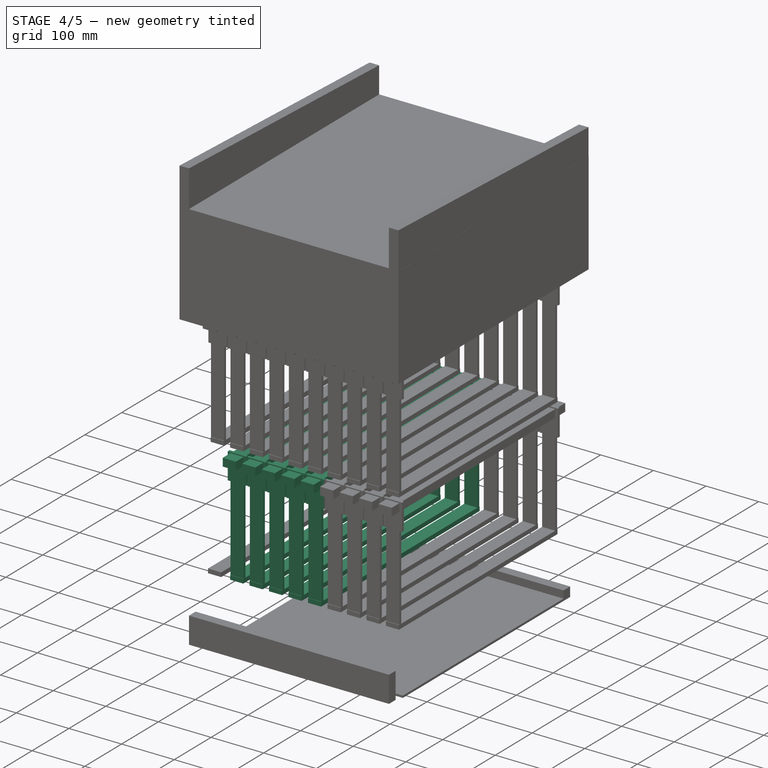
[diagram: stage 4 of 5 — iso view after this stage's code; geometry added in this stage tinted green]
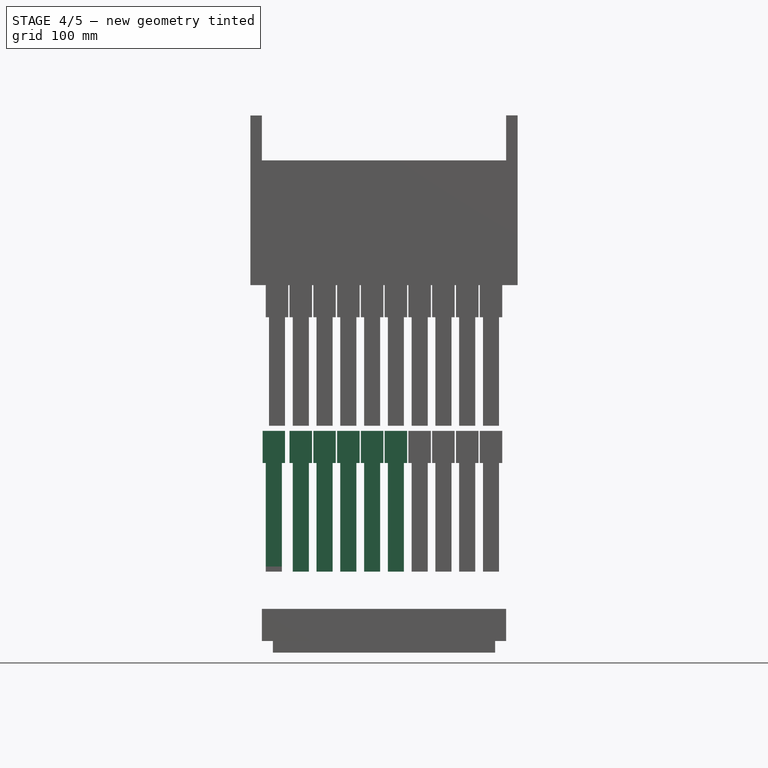
[diagram: stage 4 of 5 — front view after this stage's code; geometry added in this stage tinted green]
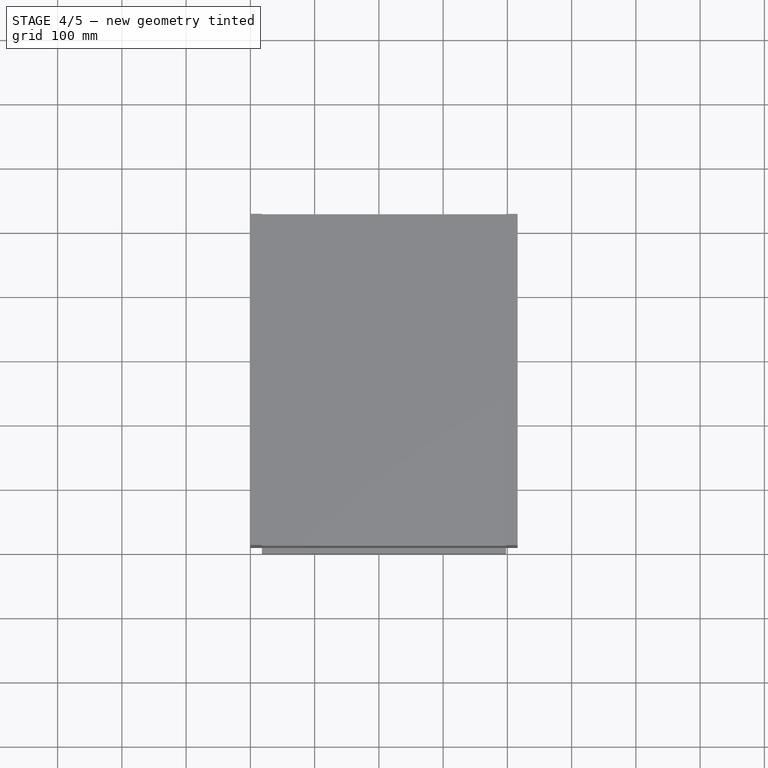
[diagram: stage 4 of 5 — top view after this stage's code; geometry added in this stage tinted green]
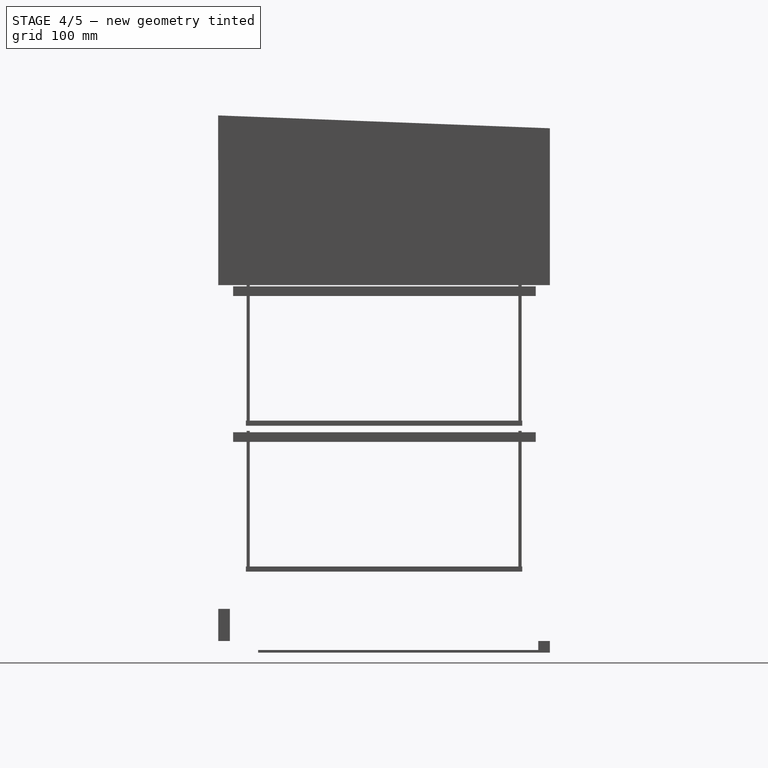
[diagram: stage 4 of 5 — right view after this stage's code; geometry added in this stage tinted green]
FEATURE [Part::Box] Box049  label="Magazin Seitenwand (1)006"
  Height = 50
  Length = 35
  Placement = pos=(19,467,331) rot=(0,0,1;0rad)
  Width = 5
FEATURE [Part::Box] Box050  label="Magazin Seitenwand (1)007"
  Height = 219
  Length = 25
  Placement = pos=(24,467,162) rot=(0,0,1;0rad)
  Width = 5
FEATURE [Part::Box] Box051  label="Rähmchen untere Leiste"
  Height = 8
  Length = 25
  Placement = pos=(24,43,162) rot=(0,0,1;0rad)
  Width = 430
FEATURE [Part::Box] Box052  label="Rähmchen obere Leiste001"
  Height = 15
  Length = 25
  Placement = pos=(24,23,364) rot=(0,0,1;0rad)
  Width = 471
FEATURE [Part::Box] Box053  label="Magazin Seitenwand (1)008"
  Height = 50
  Length = 35
  Placement = pos=(19,467,331) rot=(0,0,1;0rad)
  Width = 5
FEATURE [Part::Box] Box054  label="Magazin Seitenwand (1)009"
  Height = 219
  Length = 25
  Placement = pos=(24,467,162) rot=(0,0,1;0rad)
  Width = 5
FEATURE [Part::MultiFuse] Fusion004  label="Seitenbrett002"
  Shapes = -> [Box053,Box054]
FEATURE [Part::Box] Box055  label="Magazin Seitenwand (1)010"
  Height = 50
  Length = 35
  Placement = pos=(19,467,331) rot=(0,0,1;0rad)
  Width = 5
FEATURE [Part::Box] Box056  label="Magazin Seitenwand (1)011"
  Height = 219
  Length = 25
  Placement = pos=(24,467,162) rot=(0,0,1;0rad)
  Width = 5
FEATURE [Part::MultiFuse] Fusion005  label="Seitenbrett003"
  Placement = pos=(0,-423,0) rot=(0,0,1;0rad)
  Shapes = -> [Box055,Box056]
FEATURE [Part::Box] Box057  label="Rähmchen untere Leiste001"
  Height = 8
  Length = 25
  Placement = pos=(24,43,162) rot=(0,0,1;0rad)
  Width = 430
FEATURE [Part::MultiFuse] Fusion006  label="Rähmchen002"
  Placement = pos=(42,0,0) rot=(0,0,1;0rad)
  Shapes = -> [Box052,Fusion004,Fusion005,Box057]
FEATURE [Part::Box] Box058  label="Rähmchen obere Leiste002"
  Height = 15
  Length = 25
  Placement = pos=(24,23,364) rot=(0,0,1;0rad)
  Width = 471
FEATURE [Part::Box] Box059  label="Magazin Seitenwand (1)012"
  Height = 50
  Length = 35
  Placement = pos=(19,467,331) rot=(0,0,1;0rad)
  Width = 5
FEATURE [Part::Box] Box060  label="Magazin Seitenwand (1)013"
  Height = 219
  Length = 25
  Placement = pos=(24,467,162) rot=(0,0,1;0rad)
  Width = 5
FEATURE [Part::MultiFuse] Fusion007  label="Seitenbrett004"
  Shapes = -> [Box059,Box060]
FEATURE [Part::Box] Box061  label="Magazin Seitenwand (1)014"
  Height = 50
  Length = 35
  Placement = pos=(19,467,331) rot=(0,0,1;0rad)
  Width = 5
FEATURE [Part::Box] Box062  label="Magazin Seitenwand (1)015"
  Height = 219
  Length = 25
  Placement = pos=(24,467,162) rot=(0,0,1;0rad)
  Width = 5
FEATURE [Part::MultiFuse] Fusion008  label="Seitenbrett005"
  Placement = pos=(0,-423,0) rot=(0,0,1;0rad)
  Shapes = -> [Box061,Box062]
FEATURE [Part::Box] Box063  label="Rähmchen untere Leiste002"
  Height = 8
  Length = 25
  Placement = pos=(24,43,162) rot=(0,0,1;0rad)
  Width = 430
FEATURE [Part::MultiFuse] Fusion009  label="Rähmchen003"
  Placement = pos=(79,0,0) rot=(0,0,1;0rad)
  Shapes = -> [Box058,Fusion007,Fusion008,Box063]
FEATURE [Part::Box] Box064  label="Rähmchen obere Leiste003"
  Height = 15
  Length = 25
  Placement = pos=(24,23,364) rot=(0,0,1;0rad)
  Width = 471
FEATURE [Part::Box] Box065  label="Magazin Seitenwand (1)016"
  Height = 50
  Length = 35
  Placement = pos=(19,467,331) rot=(0,0,1;0rad)
  Width = 5
FEATURE [Part::Box] Box066  label="Magazin Seitenwand (1)017"
  Height = 219
  Length = 25
  Placement = pos=(24,467,162) rot=(0,0,1;0rad)
  Width = 5
FEATURE [Part::MultiFuse] Fusion010  label="Seitenbrett006"
  Shapes = -> [Box065,Box066]
FEATURE [Part::Box] Box067  label="Magazin Seitenwand (1)018"
  Height = 50
  Length = 35
  Placement = pos=(19,467,331) rot=(0,0,1;0rad)
  Width = 5
FEATURE [Part::Box] Box068  label="Magazin Seitenwand (1)019"
  Height = 219
  Length = 25
  Placement = pos=(24,467,162) rot=(0,0,1;0rad)
  Width = 5
FEATURE [Part::MultiFuse] Fusion011  label="Seitenbrett007"
  Placement = pos=(0,-423,0) rot=(0,0,1;0rad)
  Shapes = -> [Box067,Box068]
FEATURE [Part::Box] Box069  label="Rähmchen untere Leiste003"
  Height = 8
  Length = 25
  Placement = pos=(24,43,162) rot=(0,0,1;0rad)
  Width = 430
FEATURE [Part::MultiFuse] Fusion012  label="Rähmchen004"
  Placement = pos=(116,0,0) rot=(0,0,1;0rad)
  Shapes = -> [Box064,Fusion010,Fusion011,Box069]
FEATURE [Part::Box] Box070  label="Rähmchen obere Leiste004"
  Height = 15
  Length = 25
  Placement = pos=(24,23,364) rot=(0,0,1;0rad)
  Width = 471
FEATURE [Part::Box] Box071  label="Magazin Seitenwand (1)020"
  Height = 50
  Length = 35
  Placement = pos=(19,467,331) rot=(0,0,1;0rad)
  Width = 5
FEATURE [Part::Box] Box072  label="Magazin Seitenwand (1)021"
  Height = 219
  Length = 25
  Placement = pos=(24,467,162) rot=(0,0,1;0rad)
  Width = 5
FEATURE [Part::MultiFuse] Fusion013  label="Seitenbrett008"
  Shapes = -> [Box071,Box072]
FEATURE [Part::Box] Box073  label="Magazin Seitenwand (1)022"
  Height = 50
  Length = 35
  Placement = pos=(19,467,331) rot=(0,0,1;0rad)
  Width = 5
FEATURE [Part::Box] Box074  label="Magazin Seitenwand (1)023"
  Height = 219
  Length = 25
  Placement = pos=(24,467,162) rot=(0,0,1;0rad)
  Width = 5
FEATURE [Part::MultiFuse] Fusion014  label="Seitenbrett009"
  Placement = pos=(0,-423,0) rot=(0,0,1;0rad)
  Shapes = -> [Box073,Box074]
FEATURE [Part::Box] Box075  label="Rähmchen untere Leiste004"
  Height = 8
  Length = 25
  Placement = pos=(24,43,162) rot=(0,0,1;0rad)
  Width = 430
FEATURE [Part::MultiFuse] Fusion015  label="Rähmchen005"
  Placement = pos=(153,0,0) rot=(0,0,1;0rad)
  Shapes = -> [Box070,Fusion013,Fusion014,Box075]
FEATURE [Part::Box] Box076  label="Rähmchen obere Leiste005"
  Height = 15
  Length = 25
  Placement = pos=(24,23,364) rot=(0,0,1;0rad)
  Width = 471
FEATURE [Part::Box] Box077  label="Magazin Seitenwand (1)024"
  Height = 50
  Length = 35
  Placement = pos=(19,467,331) rot=(0,0,1;0rad)
  Width = 5
FEATURE [Part::Box] Box078  label="Magazin Seitenwand (1)025"
  Height = 219
  Length = 25
  Placement = pos=(24,467,162) rot=(0,0,1;0rad)
  Width = 5
FEATURE [Part::MultiFuse] Fusion016  label="Seitenbrett010"
  Shapes = -> [Box077,Box078]
FEATURE [Part::Box] Box079  label="Magazin Seitenwand (1)026"
  Height = 50
  Length = 35
  Placement = pos=(19,467,331) rot=(0,0,1;0rad)
  Width = 5
FEATURE [Part::Box] Box080  label="Magazin Seitenwand (1)027"
  Height = 219
  Length = 25
  Placement = pos=(24,467,162) rot=(0,0,1;0rad)
  Width = 5
FEATURE [Part::MultiFuse] Fusion017  label="Seitenbrett011"
  Placement = pos=(0,-423,0) rot=(0,0,1;0rad)
  Shapes = -> [Box079,Box080]
FEATURE [Part::MultiFuse] Fusion018  label="Rähmchen006"
  Placement = pos=(190,0,0) rot=(0,0,1;0rad)
  Shapes = -> [Box076,Fusion016,Fusion017,Box081]
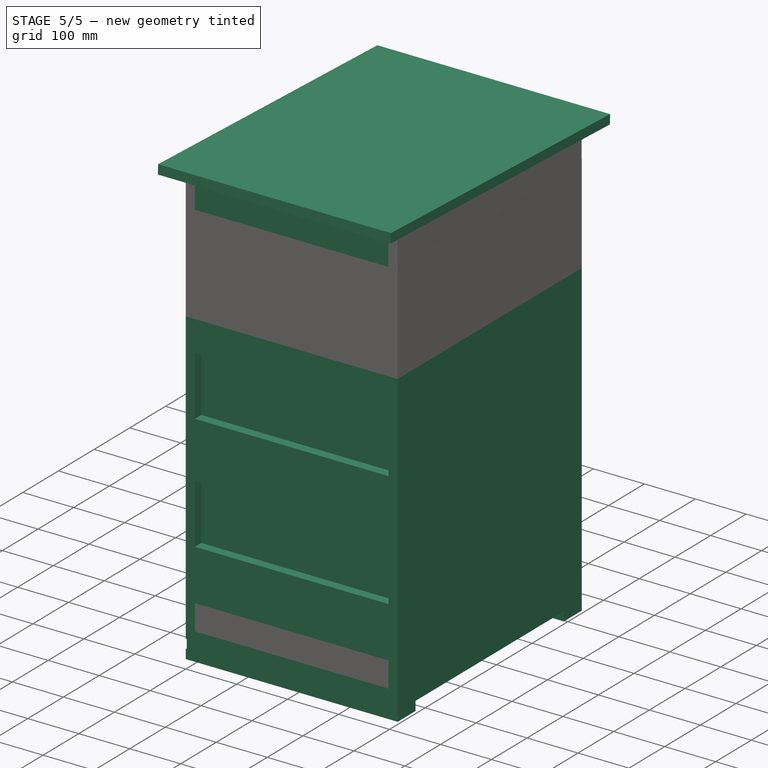
[diagram: stage 5 of 5 — iso view after this stage's code; geometry added in this stage tinted green]
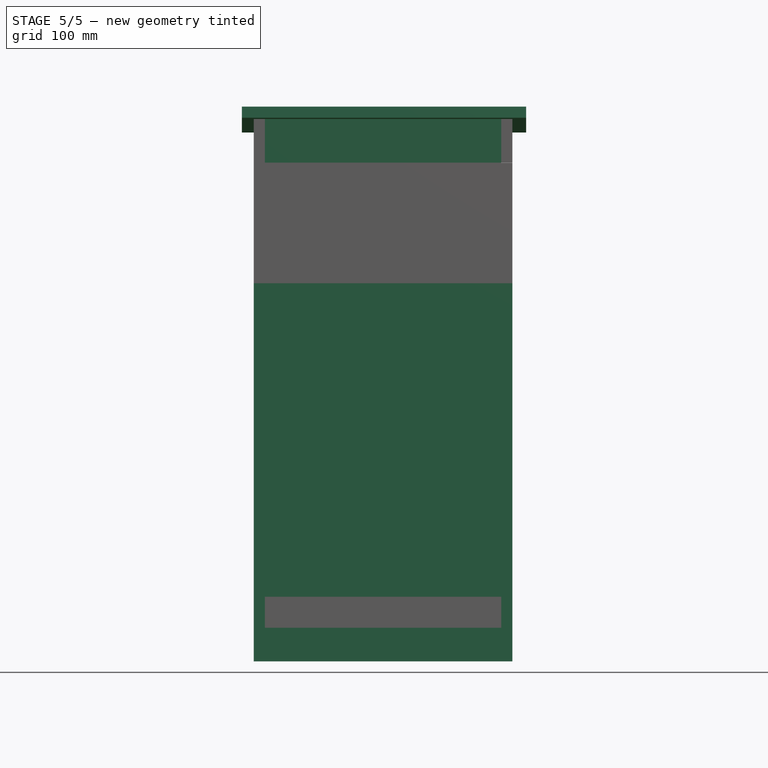
[diagram: stage 5 of 5 — front view after this stage's code; geometry added in this stage tinted green]
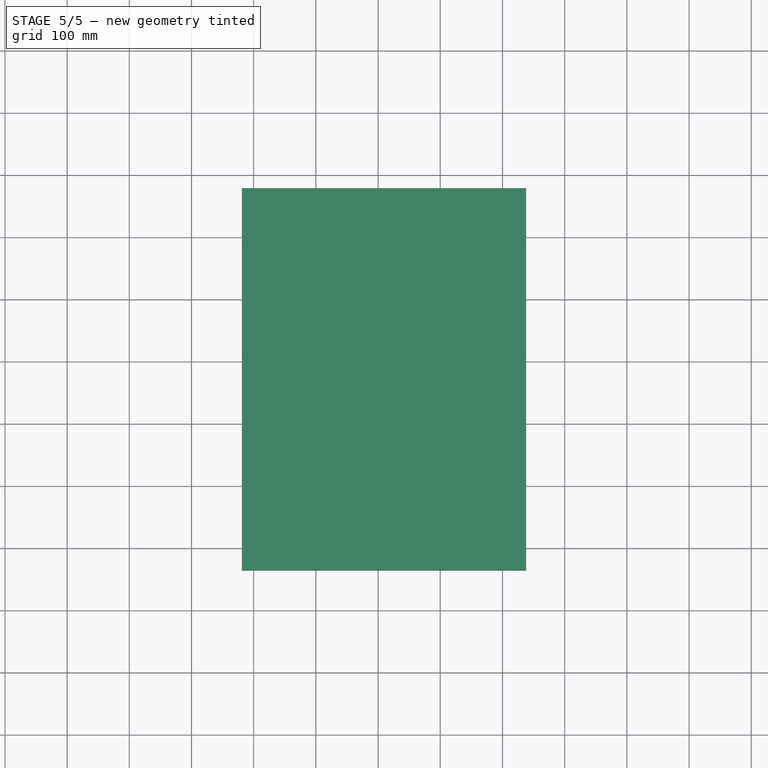
[diagram: stage 5 of 5 — top view after this stage's code; geometry added in this stage tinted green]
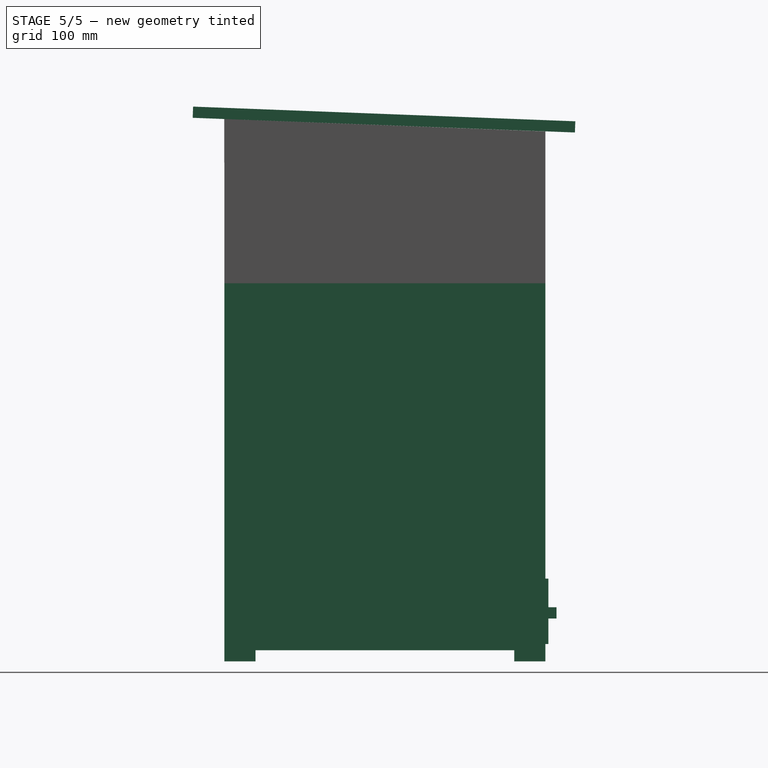
[diagram: stage 5 of 5 — right view after this stage's code; geometry added in this stage tinted green]
FEATURE [Part::Box] Box  label="Boden - Obere Seitenwand (1)"
  Height = 100
  Length = 516
  Placement = pos=(18,0,54) rot=(0,0,1;1.5708rad)
  Width = 18
FEATURE [Part::Box] Box001  label="Boden Rückseite (2)"
  Height = 100
  Length = 380
  Placement = pos=(18,498,54) rot=(0,0,1;0rad)
  Width = 18
FEATURE [Part::Box] Box002  label="Boden - Obere Frontseite (3)"
  Height = 50
  Length = 380
  Placement = pos=(18,0,104) rot=(0,0,1;0rad)
  Width = 18
FEATURE [Part::Box] Box003  label="Boden Mäusefalle (4)"
  Height = 68
  Length = 380
  Placement = pos=(18,18,62) rot=(0,0,1;0rad)
  Width = 18
FEATURE [Part::Box] Box004  label="Boden - Untere Seitenwand (5)"
  Height = 18
  Length = 50
  Placement = pos=(0,60,36) rot=(0,0,1;0rad)
  Width = 456
FEATURE [Part::Box] Box005  label="Boden - Untere Führungsschiene (6)"
  Height = 18
  Length = 60
  Placement = pos=(356,0,18) rot=(0,0,1;0rad)
  Width = 466
FEATURE [Part::Box] Box007  label="Boden - Anschlag vorne für Schublade (8)"
  Height = 18
  Length = 294
  Placement = pos=(62,0,18) rot=(0,0,1;0rad)
  Width = 50
FEATURE [Part::Box] Box008  label="Boden - Füsse (9)"
  Height = 50
  Length = 416
  Placement = pos=(0,50,0) rot=(1,0,0;1.5708rad)
  Width = 18
FEATURE [Part::Box] Box009  label="Boden - Obere Seitenwand (1)001"
  Height = 100
  Length = 516
  Placement = pos=(416,0,54) rot=(0,0,1;1.5708rad)
  Width = 18
FEATURE [Part::Box] Box014  label="Boden - Füsse (9)003"
  Height = 50
  Length = 416
  Placement = pos=(0,516,0) rot=(1,0,0;1.5708rad)
  Width = 18
FEATURE [Part::Box] Box015  label="Boden - Füsse (9)004"
  Height = 50
  Length = 416
  Placement = pos=(0,516,18) rot=(1,0,0;1.5708rad)
  Width = 18
FEATURE [Part::Box] Box016  label="Boden - Anflugbrett (7)"
  Height = 60
  Length = 416
  Placement = pos=(0,60,36) rot=(1,0,0;1.5708rad)
  Width = 18
FEATURE [Part::Box] Box017  label="Boden - Untere Seitenwand (5)001"
  Height = 18
  Length = 50
  Placement = pos=(366,60,36) rot=(0,0,1;0rad)
  Width = 456
FEATURE [Part::Box] Box018  label="Boden - Untere Führungsschiene (6)001"
  Height = 18
  Length = 60
  Placement = pos=(2,0,18) rot=(0,0,1;0rad)
  Width = 466
FEATURE [Part::Box] Box019  label="Drahtgitter"
  Height = 0.1
  Length = 346
  Placement = pos=(35,39,54) rot=(0,0,1;0rad)
  Width = 464
FEATURE [Part::Box] Box021  label="Boden Rückseite Bearbeitungsloch-Deckel (2.1)001"
  Height = 63
  Length = 294
  Placement = pos=(60,498,54) rot=(0,0,1;0rad)
  Width = 18
FEATURE [Part::Cut] Cut  label="Boden Rückseite (2) mit Deckel-Ausschnitt"
  Base = -> Box001
  Tool = -> Box021
FEATURE [Part::Box] Box020  label="Boden Bearbeitungsloch Brett Ausschnitt"
  Height = 63
  Length = 294
  Placement = pos=(60,498,54) rot=(0,0,1;0rad)
  Width = 18
FEATURE [Part::Box] Box023  label="Boden Bearbeitungsloch Deckel Griff"
  Height = 18
  Length = 149
  Placement = pos=(125,516,69) rot=(0,0,1;0rad)
  Width = 18
FEATURE [Part::Box] Box024  label="Boden Rückwand Deckel Schutz gg Reinrutschen"
  Height = 105
  Length = 370
  Placement = pos=(22,516,28) rot=(0,0,1;0rad)
  Width = 5
FEATURE [Part::MultiFuse] Fusion  label="Boden Rückseite Öffnung Deckel (2.1)"
  Shapes = -> [Box020,Box023,Box024]
FEATURE [Part::Box] Box025  label="Magazin Stirnwand (2)"
  Height = 210
  Length = 380
  Placement = pos=(18,480,154) rot=(0,0,1;0rad)
  Width = 18
FEATURE [Part::Box] Box026  label="Magazin Stirnwand (2.1)"
  Height = 210
  Length = 380
  Placement = pos=(18,18,154) rot=(0,0,1;0rad)
  Width = 18
FEATURE [Part::Box] Box027  label="Magazin Griff oben (3)"
  Height = 60
  Length = 380
  Placement = pos=(18,0,321) rot=(0,0,1;0rad)
  Width = 18
  expr: Placement.Base.z = 304 + 17
FEATURE [Part::Box] Box028  label="Magazin Griff oben (3.1)"
  Height = 60
  Length = 380
  Placement = pos=(18,498,321) rot=(0,0,1;0rad)
  Width = 18
  expr: Placement.Base.z = 304 + 17
FEATURE [Part::Box] Box029  label="Magazin Griff unten (4)"
  Height = 50
  Length = 380
  Placement = pos=(18,0,154) rot=(0,0,1;0rad)
  Width = 18
FEATURE [Part::Box] Box030  label="Magazin Griff unten (4.1)"
  Height = 50
  Length = 380
  Placement = pos=(18,498,154) rot=(0,0,1;0rad)
  Width = 18
FEATURE [Part::Box] Box031  label="Magazin Seitenwand (1)"
  Height = 227
  Length = 18
  Placement = pos=(0,0,154) rot=(0,0,1;0rad)
  Width = 516
FEATURE [Part::Box] Box032  label="Magazin Seitenwand (1.1)"
  Height = 227
  Length = 18
  Placement = pos=(398,0,154) rot=(0,0,1;0rad)
  Width = 516
FEATURE [Part::Box] Box033  label="Magazin Stirnwand (2)001"
  Height = 210
  Length = 380
  Placement = pos=(18,18,381) rot=(0,0,1;0rad)
  Width = 18
FEATURE [Part::Box] Box034  label="Magazin Stirnwand (2.1)001"
  Height = 210
  Length = 380
  Placement = pos=(18,480,381) rot=(0,0,1;0rad)
  Width = 18
FEATURE [Part::Box] Box035  label="Magazin Griff oben (3.1)001"
  Height = 60
  Length = 380
  Placement = pos=(18,0,548) rot=(0,0,1;0rad)
  Width = 18
FEATURE [Part::Box] Box036  label="Magazin Griff unten (4)001"
  Height = 50
  Length = 380
  Placement = pos=(18,0,381) rot=(0,0,1;0rad)
  Width = 18
FEATURE [Part::Box] Box037  label="Magazin Griff unten (4.1)001"
  Height = 50
  Length = 380
  Placement = pos=(18,498,381) rot=(0,0,1;0rad)
  Width = 18
FEATURE [Part::Box] Box038  label="Magazin Griff oben (3)001"
  Height = 60
  Length = 380
  Placement = pos=(18,498,548) rot=(0,0,1;0rad)
  Width = 18
FEATURE [Part::Box] Box039  label="Magazin Seitenwand (1)001"
  Height = 227
  Length = 18
  Placement = pos=(398,0,381) rot=(0,0,1;0rad)
  Width = 516
FEATURE [Part::Box] Box040  label="Magazin Seitenwand (1.1)001"
  Height = 227
  Length = 18
  Placement = pos=(0,0,381) rot=(0,0,1;0rad)
  Width = 516
FEATURE [Part::Box] Box041  label="Deckel Stirnseite (2)"
  Height = 50
  Length = 380
  Placement = pos=(18,498,802) rot=(0,0,1;0rad)
  Width = 18
FEATURE [Part::Box] Box042  label="Deckel Stirnseite (2.1)"
  Height = 70
  Length = 380
  Placement = pos=(18,0,802) rot=(0,0,1;0rad)
  Width = 18
FEATURE [Part::Box] Box043  label="Deckel Oberseite (3)"
  Height = 18
  Length = 457
  Placement = pos=(-19,-51,874) rot=(-1,0,0;0.038397rad)
  Width = 615
FEATURE [Part::Box] Box045  label="Rähmchen obere Leiste"
  Height = 15
  Length = 25
  Placement = pos=(23,23,364) rot=(0,0,1;0rad)
  Width = 471
FEATURE [Part::Box] Box046  label="Magazin Seitenwand (1)003"
  Height = 50
  Length = 35
  Placement = pos=(19,467,331) rot=(0,0,1;0rad)
  Width = 5
FEATURE [Part::Box] Box048  label="Magazin Seitenwand (1)005"
  Height = 219
  Length = 25
  Placement = pos=(24,467,162) rot=(0,0,1;0rad)
  Width = 5
FEATURE [Part::MultiFuse] Fusion001  label="Seitenbrett"
  Shapes = -> [Box046,Box048]
FEATURE [Part::MultiFuse] Fusion002  label="Seitenbrett001"
  Placement = pos=(0,-423,0) rot=(0,0,1;0rad)
  Shapes = -> [Box049,Box050]
FEATURE [Part::MultiFuse] Fusion003  label="Rähmchen001"
  Placement = pos=(5,0,0) rot=(0,0,1;0rad)
  Shapes = -> [Box045,Fusion001,Fusion002,Box051]
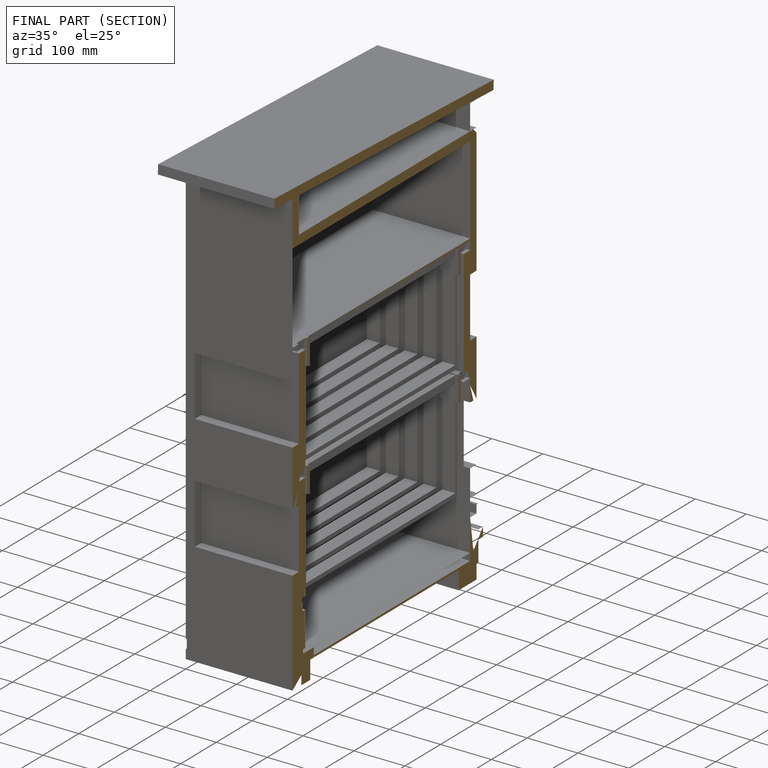
[diagram: finished part — half-section view (interior)]
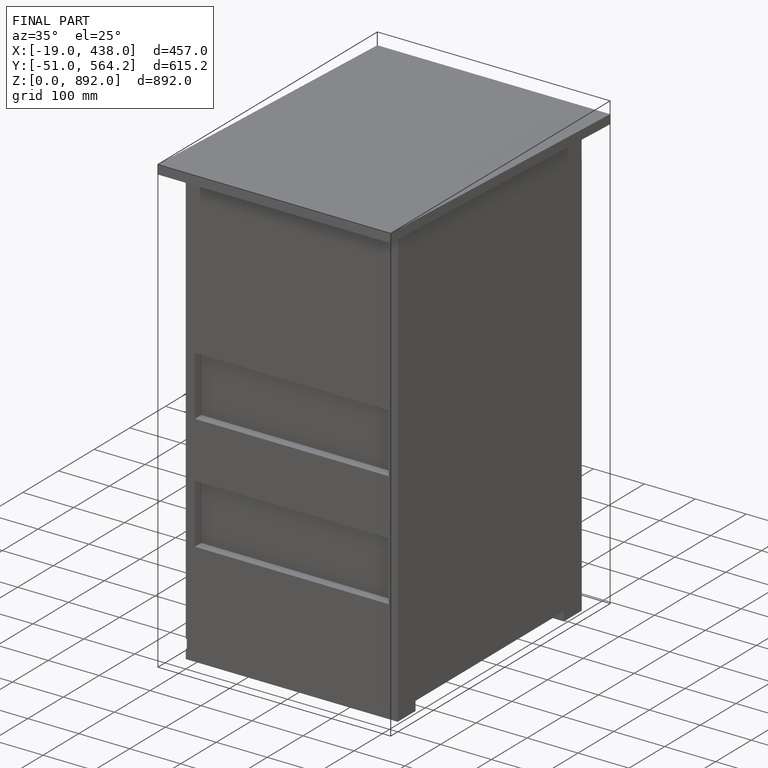
[diagram: finished part — iso view with bounding-box wireframe]
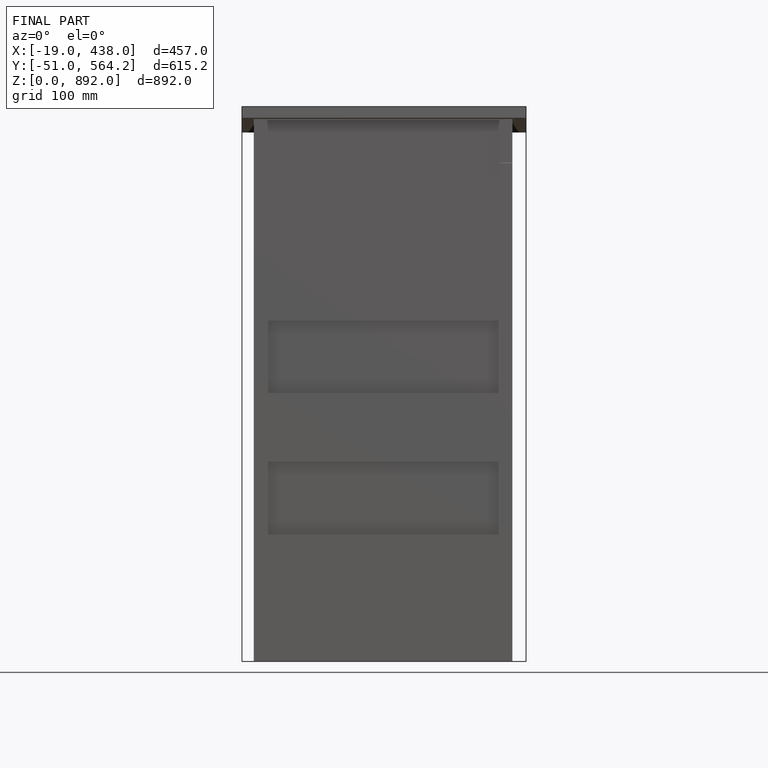
[diagram: finished part — front view with bounding-box wireframe]
